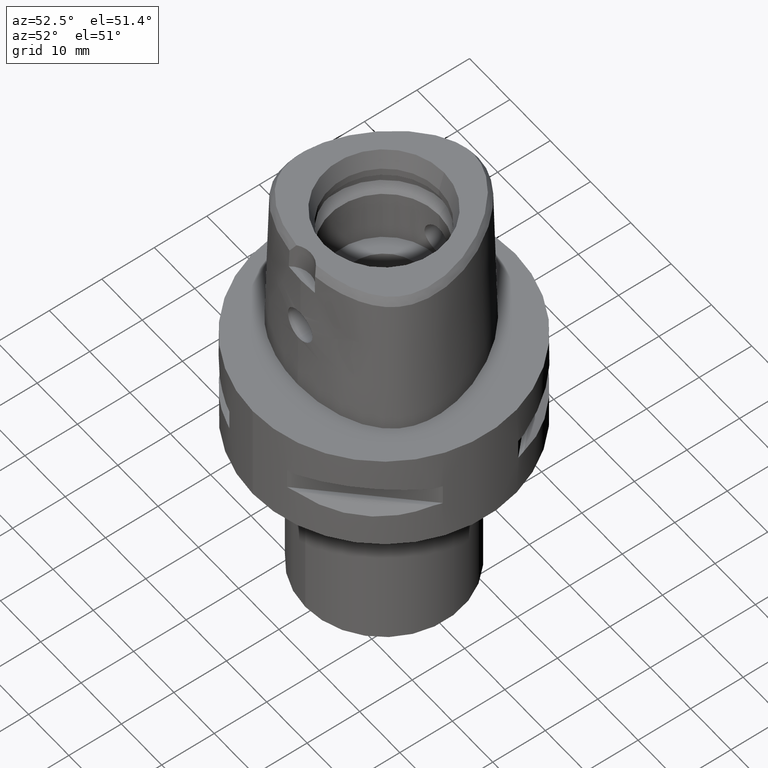
[diagram: clean part render]
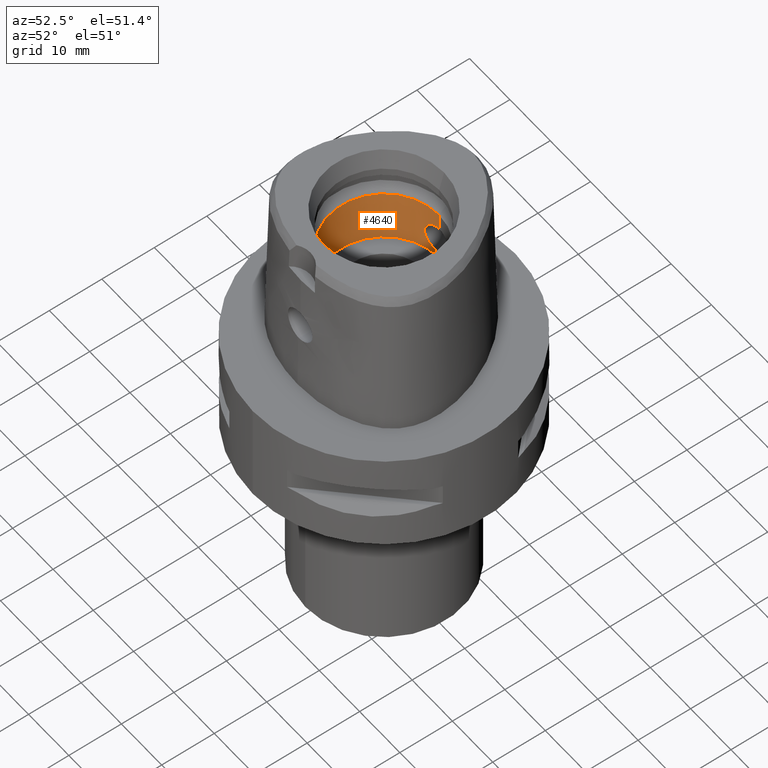
[diagram: same view with one face highlighted and labeled with its STEP entity id]
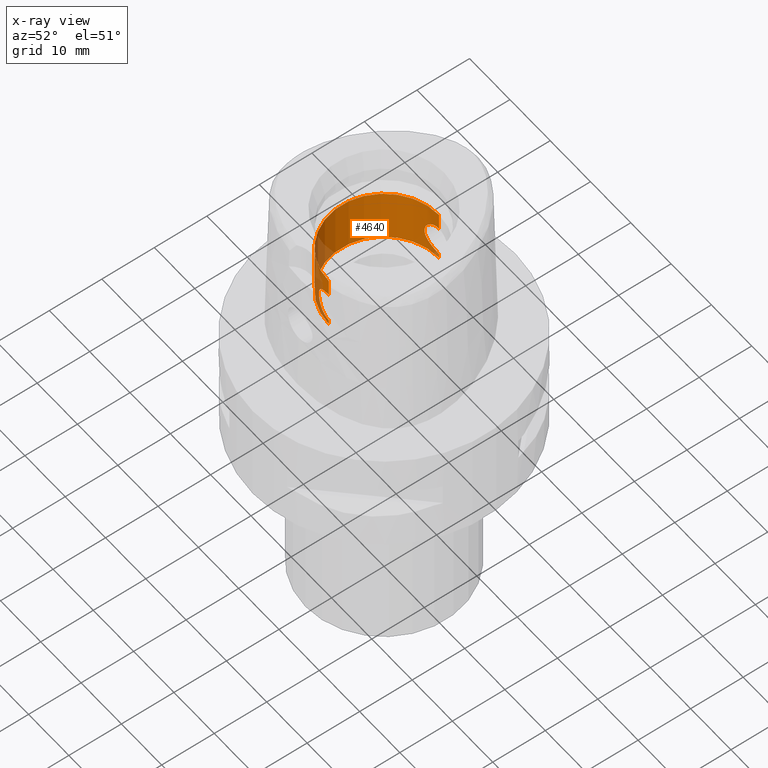
[diagram: x-ray of the same camera — body ghosted, the highlighted face saturated]
A machine part, auxiliary view. The second image highlights one B-rep face of the part: STEP entity #4640.
The next image is the same camera in x-ray: the body ghosted, the highlighted face saturated — about 11% of this face is hidden behind the body in this view.
In plain terms, the highlighted cylindrical surface (partial cylindrical patch) has radius 10.5 mm, axis along (0, 0, -1).
Its self-contained STEP definition (entity closure, byte-faithful):
#2 = CARTESIAN_POINT ( 'NONE',  ( -1.173481769181395240, 10.43414434571234928, 11.18478056985717828 ) ) ;
#6 = CARTESIAN_POINT ( 'NONE',  ( -0.9073737867379618738, 10.46066429760500327, 16.91233624105414535 ) ) ;
#8 = CARTESIAN_POINT ( 'NONE',  ( -1.171446280017236941, -10.43437439417400547, 16.81607116005074332 ) ) ;
#31 = CARTESIAN_POINT ( 'NONE',  ( -2.814434102808534455, 10.11581186352007578, 15.17535741035406360 ) ) ;
#56 = CARTESIAN_POINT ( 'NONE',  ( -1.135586481595579622, 10.43836894441158591, 16.83072159832767056 ) ) ;
#73 = ORIENTED_EDGE ( 'NONE', *, *, #1667, .F. ) ;
#106 = CARTESIAN_POINT ( 'NONE',  ( 0.0000000000000000000, 1.610410540878999754E-14, 31.50000000000000000 ) ) ;
#131 = CIRCLE ( 'NONE', #3624, 10.50000000000000000 ) ;
#159 = DIRECTION ( 'NONE',  ( 0.0000000000000000000, 0.0000000000000000000, -1.000000000000000000 ) ) ;
#166 = CARTESIAN_POINT ( 'NONE',  ( -2.892703254652473355, 10.09374968731904865, 13.03083356897538536 ) ) ;
#214 = CARTESIAN_POINT ( 'NONE',  ( 0.0000000000000000000, 1.610410540878999754E-14, 10.00000000000000000 ) ) ;
#219 = CARTESIAN_POINT ( 'NONE',  ( -0.3769461190990974209, -10.49475565115308129, 10.96703828538734093 ) ) ;
#243 = CARTESIAN_POINT ( 'NONE',  ( -3.034120694434184529, -10.05244458539319474, 14.36728261852221600 ) ) ;
#269 = CARTESIAN_POINT ( 'NONE',  ( -1.135542693560009253, -10.43837377961427393, 11.16926083653540402 ) ) ;
#285 = CARTESIAN_POINT ( 'NONE',  ( 0.0000000000000000000, 10.50000000000000000, 17.05000000000000071 ) ) ;
#302 = CARTESIAN_POINT ( 'NONE',  ( -2.831996980366694672, -10.11090781779727088, 15.13239191246858084 ) ) ;
#305 = CARTESIAN_POINT ( 'NONE',  ( -1.539446235935608698, 10.38596146682503196, 11.36500553783416301 ) ) ;
#319 = CARTESIAN_POINT ( 'NONE',  ( -1.063716534211054165, -10.44595862399150121, 11.14130147432112494 ) ) ;
#326 = DIRECTION ( 'NONE',  ( 0.0000000000000000000, 0.0000000000000000000, 1.000000000000000000 ) ) ;
#327 = CARTESIAN_POINT ( 'NONE',  ( -1.800689095717022736, -10.34490975957078618, 16.47030153377740547 ) ) ;
#383 = ORIENTED_EDGE ( 'NONE', *, *, #2547, .T. ) ;
#392 = CARTESIAN_POINT ( 'NONE',  ( -2.812821933415459164, 10.11626277296583254, 15.17921038497073027 ) ) ;
#461 = CARTESIAN_POINT ( 'NONE',  ( -2.684766696915229733, 10.15183026272683442, 15.44964215079497905 ) ) ;
#508 = CARTESIAN_POINT ( 'NONE',  ( -3.050553796235344617, 10.04720390952633480, 13.82341441610165411 ) ) ;
#550 = AXIS2_PLACEMENT_3D ( 'NONE', #106, #897, #2704 ) ;
#605 = CARTESIAN_POINT ( 'NONE',  ( -2.810298988625102190, -10.11696844544681362, 12.81477828219950510 ) ) ;
#609 = ORIENTED_EDGE ( 'NONE', *, *, #4462, .F. ) ;
#632 = CARTESIAN_POINT ( 'NONE',  ( -2.387696532047022036, 10.22542662744814734, 12.10138926639515589 ) ) ;
#659 = CARTESIAN_POINT ( 'NONE',  ( -2.684684765288590125, -10.15185177997768839, 12.55020687075531072 ) ) ;
#662 = CARTESIAN_POINT ( 'NONE',  ( -1.992064795466383265, 10.31113067677813966, 11.67458098449633930 ) ) ;
#670 = CARTESIAN_POINT ( 'NONE',  ( -1.539498320762261674, -10.38595313645027751, 16.63496444799061180 ) ) ;
#686 = CARTESIAN_POINT ( 'NONE',  ( -2.792488507834708145, -10.12196501333502141, 12.77319647353850662 ) ) ;
#693 = LINE ( 'NONE', #3652, #4292 ) ;
#735 = CARTESIAN_POINT ( 'NONE',  ( 0.0000000000000000000, -10.50000000000000000, 17.05000000000000071 ) ) ;
#775 = CARTESIAN_POINT ( 'NONE',  ( -1.143400080151486753, 10.43751671149130011, 16.82757071867980159 ) ) ;
#784 = VERTEX_POINT ( 'NONE', #4619 ) ;
#801 = CARTESIAN_POINT ( 'NONE',  ( -2.340017372230420722, 10.23775351421635449, 15.97455472758539941 ) ) ;
#828 = CARTESIAN_POINT ( 'NONE',  ( -1.918855400065954342, 10.32287837840188693, 16.37146043430447051 ) ) ;
#852 = CARTESIAN_POINT ( 'NONE',  ( -1.063757335181781283, 10.44595438389687203, 16.85868336233439280 ) ) ;
#897 = DIRECTION ( 'NONE',  ( 0.0000000000000000000, 0.0000000000000000000, -1.000000000000000000 ) ) ;
#905 = CARTESIAN_POINT ( 'NONE',  ( 0.0000000000000000000, -10.50000000000000000, 10.94999999999999929 ) ) ;
#939 = CARTESIAN_POINT ( 'NONE',  ( -2.387806793968355379, -10.22540079938099034, 15.89847208794759048 ) ) ;
#969 = CARTESIAN_POINT ( 'NONE',  ( -0.9796573461702405838, -10.45427583349091272, 11.11082713360943686 ) ) ;
#990 = CARTESIAN_POINT ( 'NONE',  ( -2.269379487402719775, -10.25194072429462011, 16.03799476641579957 ) ) ;
#998 = CARTESIAN_POINT ( 'NONE',  ( -2.640275799985668304, -10.16376989680981069, 12.46980625619239191 ) ) ;
#1021 = CARTESIAN_POINT ( 'NONE',  ( -2.057039722193770626, -10.29656268864571977, 11.74725631044854524 ) ) ;
#1024 = CARTESIAN_POINT ( 'NONE',  ( -2.290005176403708820, 10.24740007802946629, 11.98522421031074359 ) ) ;
#1060 = CARTESIAN_POINT ( 'NONE',  ( -2.226507933971030528, -10.26126560890290484, 16.08474659029496223 ) ) ;
#1091 = VERTEX_POINT ( 'NONE', #905 ) ;
#1123 = VERTEX_POINT ( 'NONE', #4589 ) ;
#1173 = CARTESIAN_POINT ( 'NONE',  ( -1.964843264978771487, 10.31435086354782626, 16.33359347603885325 ) ) ;
#1177 = EDGE_CURVE ( 'NONE', #1123, #3577, #4161, .T. ) ;
#1196 = CARTESIAN_POINT ( 'NONE',  ( -0.6659081719184466452, 10.47902095872267125, 16.97803263452759381 ) ) ;
#1218 = CARTESIAN_POINT ( 'NONE',  ( -2.101991880645496913, 10.28756668181484990, 16.21102535339625561 ) ) ;
#1240 = VERTEX_POINT ( 'NONE', #2724 ) ;
#1324 = CARTESIAN_POINT ( 'NONE',  ( -1.279795990413202356, -10.42254525341326854, 11.22781434327660222 ) ) ;
#1353 = CARTESIAN_POINT ( 'NONE',  ( -2.758065395820142651, -10.13161914555803378, 12.69732088948846460 ) ) ;
#1356 = CARTESIAN_POINT ( 'NONE',  ( 0.0000000000000000000, -10.50000000000000000, 20.40000000000000213 ) ) ;
#1368 = CARTESIAN_POINT ( 'NONE',  ( 0.0000000000000000000, 10.50000000000000000, 10.00000000000000000 ) ) ;
#1393 = CARTESIAN_POINT ( 'NONE',  ( -0.1858821787070612797, -10.49999999999999822, 10.95000000000000107 ) ) ;
#1406 = CARTESIAN_POINT ( 'NONE',  ( -1.782151806293168272, -10.34734398456256876, 11.52214724936526302 ) ) ;
#1459 = CARTESIAN_POINT ( 'NONE',  ( -2.831904509586855578, 10.11093372470853957, 12.86737685814506094 ) ) ;
#1512 = CARTESIAN_POINT ( 'NONE',  ( -0.1858882271651223494, 10.50000000000000000, 17.05000000000000071 ) ) ;
#1537 = CARTESIAN_POINT ( 'NONE',  ( -1.692952544297990025, 10.36212583802534404, 16.53900804376163336 ) ) ;
#1576 = CARTESIAN_POINT ( 'NONE',  ( -2.792575940378019261, 10.12194109926030450, 15.22660460357698220 ) ) ;
#1667 = EDGE_CURVE ( 'NONE', #2196, #1240, #2021, .T. ) ;
#1686 = CARTESIAN_POINT ( 'NONE',  ( -2.814344515331022922, -10.11583665672618082, 12.82442809338235357 ) ) ;
#1696 = CARTESIAN_POINT ( 'NONE',  ( 0.0000000000000000000, 10.50000000000000000, 17.05000000000000071 ) ) ;
#1712 = CARTESIAN_POINT ( 'NONE',  ( -3.050566719225782375, -10.04719961628191882, 14.17636273764910904 ) ) ;
#1741 = CARTESIAN_POINT ( 'NONE',  ( -1.918768346776058120, -10.32289481242496620, 11.62846930021224523 ) ) ;
#1769 = CARTESIAN_POINT ( 'NONE',  ( -2.835164359935582468, -10.11001752008970200, 15.12444837143124232 ) ) ;
#1772 = CARTESIAN_POINT ( 'NONE',  ( -1.456542451511891434, 10.39803232971827462, 11.31886405810929475 ) ) ;
#1780 = CARTESIAN_POINT ( 'NONE',  ( -1.194179935576460849, -10.43179318641776021, 16.80652400505248778 ) ) ;
#1827 = CARTESIAN_POINT ( 'NONE',  ( -1.303441592047922981, -10.41854934305479219, 16.75773104947085912 ) ) ;
#1861 = CARTESIAN_POINT ( 'NONE',  ( -1.105685293901660815, 10.44158033573992306, 16.84257792115571917 ) ) ;
#1934 = CARTESIAN_POINT ( 'NONE',  ( -2.758150321750191925, 10.13159626658370982, 15.30249952195736363 ) ) ;
#1935 = CYLINDRICAL_SURFACE ( 'NONE', #550, 10.50000000000000000 ) ;
#1958 = CARTESIAN_POINT ( 'NONE',  ( -2.896536638772347239, 10.09287351121230358, 14.97801049374260351 ) ) ;
#1981 = CARTESIAN_POINT ( 'NONE',  ( -3.034093898714390836, 10.05245301727958207, 13.63249388415417584 ) ) ;
#2014 = DIRECTION ( 'NONE',  ( 0.0000000000000000000, -1.000000000000000000, 0.0000000000000000000 ) ) ;
#2021 = B_SPLINE_CURVE_WITH_KNOTS ( 'NONE', 3,
 ( #3375, #1512, #3325, #1196, #4164, #6, #2992, #852, #1861, #4134, #56, #775, #2273, #4442, #1537, #2661, #828, #1173, #2302, #1218, #801, #4092, #3792, #461, #3415, #1934, #2586, #1576, #3349, #2686, #392, #31, #4472, #1958, #3514, #2341, #3443, #508, #1981, #3467, #2726, #3488, #166, #3965, #2894, #2865, #3303, #1459, #4025, #4395, #2152, #2101, #632, #4345, #1024, #2479, #4742, #3994, #662, #4370, #305, #1772, #3256, #3012, #2296, #3719, #2629, #3697, #2, #4129, #2269, #4158, #3341 ),
 .UNSPECIFIED., .F., .F.,
 ( 4, 2, 2, 1, 1, 1, 2, 2, 2, 2, 2, 2, 2, 2, 2, 1, 1, 1, 2, 2, 2, 2, 2, 2, 1, 1, 1, 2, 2, 2, 2, 2, 2, 2, 2, 2, 2, 1, 1, 2, 2, 4 ),
 ( 0.0000000000000000000, 0.06249999999999839018, 0.09374999999999747424, 0.1093749999999968220, 0.1171874999999963363, 0.1210937499999958922, 0.1230468749999954620, 0.1249999999999950179, 0.1874999999999928668, 0.2187499999999920897, 0.2343749999999916733, 0.2499999999999912292, 0.3124999999999893974, 0.3437499999999886757, 0.3593749999999882871, 0.3671874999999878431, 0.3710937499999876210, 0.3730468749999875100, 0.3740234374999873435, 0.3749999999999872324, 0.4374999999999830136, 0.4999999999999787947, 0.5624999999999746869, 0.5937499999999724665, 0.6093749999999712452, 0.6171874999999705791, 0.6210937499999702460, 0.6230468749999700240, 0.6249999999999699130, 0.6874999999999749090, 0.7187499999999774625, 0.7343749999999786837, 0.7421874999999791278, 0.7499999999999795719, 0.8124999999999830136, 0.8437499999999846789, 0.8593749999999856781, 0.8671874999999861222, 0.8710937499999863443, 0.8730468749999864553, 0.8749999999999866773, 1.000000000000000000 ),
 .UNSPECIFIED. ) ;
#2046 = CARTESIAN_POINT ( 'NONE',  ( -2.839865650372092709, -10.10869485165321180, 15.11252153943194720 ) ) ;
#2070 = CARTESIAN_POINT ( 'NONE',  ( -2.896466489099945196, -10.09289404095490816, 13.02177910099563896 ) ) ;
#2074 = DIRECTION ( 'NONE',  ( 0.0000000000000000000, 0.0000000000000000000, 1.000000000000000000 ) ) ;
#2075 = VERTEX_POINT ( 'NONE', #1368 ) ;
#2098 = CARTESIAN_POINT ( 'NONE',  ( -0.6658837331732454512, -10.47902260461231805, 11.02196203203387803 ) ) ;
#2101 = CARTESIAN_POINT ( 'NONE',  ( -2.492666721025248666, 10.20089502616666444, 12.23864188606382442 ) ) ;
#2108 = CARTESIAN_POINT ( 'NONE',  ( -1.992165530446870614, -10.31111156906067627, 16.32533859875128712 ) ) ;
#2113 = EDGE_CURVE ( 'NONE', #1091, #784, #3538, .T. ) ;
#2115 = DIRECTION ( 'NONE',  ( 0.0000000000000000000, 0.0000000000000000000, 1.000000000000000000 ) ) ;
#2125 = CARTESIAN_POINT ( 'NONE',  ( -3.049403424720013689, -10.04754727865349651, 13.80455211184334274 ) ) ;
#2149 = CARTESIAN_POINT ( 'NONE',  ( -2.954890636952320460, -10.07597771771355966, 13.21854996271913230 ) ) ;
#2152 = CARTESIAN_POINT ( 'NONE',  ( -2.552730107843664609, 10.18607107482576346, 12.32787693487547109 ) ) ;
#2182 = CARTESIAN_POINT ( 'NONE',  ( -2.205204961979309264, -10.26584817307253061, 16.10730119147505235 ) ) ;
#2196 = VERTEX_POINT ( 'NONE', #1696 ) ;
#2269 = CARTESIAN_POINT ( 'NONE',  ( -0.7767670544993955373, 10.47835210009466778, 11.02075174476987485 ) ) ;
#2273 = CARTESIAN_POINT ( 'NONE',  ( -1.279836940357531372, 10.42254014582241517, 16.77216661298817968 ) ) ;
#2296 = CARTESIAN_POINT ( 'NONE',  ( -1.249850778321642597, 10.42519533784937380, 11.21777819611717142 ) ) ;
#2302 = CARTESIAN_POINT ( 'NONE',  ( -2.057140347131940938, 10.29654247502929820, 16.25265202806501108 ) ) ;
#2341 = CARTESIAN_POINT ( 'NONE',  ( -3.031369317546774855, 10.05329747986363920, 14.39095039537178522 ) ) ;
#2350 = CARTESIAN_POINT ( 'NONE',  ( 0.0000000000000000000, 1.483659597167000164E-14, 20.40000000000000213 ) ) ;
#2366 = EDGE_LOOP ( 'NONE', ( #3117, #383, #4142, #73, #3559, #4767, #609, #4079 ) ) ;
#2404 = CARTESIAN_POINT ( 'NONE',  ( -0.9073394764245766853, -10.46066738364810078, 11.08765310790325387 ) ) ;
#2406 = LINE ( 'NONE', #3907, #3423 ) ;
#2420 = AXIS2_PLACEMENT_3D ( 'NONE', #2350, #3475, #3868 ) ;
#2479 = CARTESIAN_POINT ( 'NONE',  ( -2.269261269603271014, 10.25196694371598660, 11.96187359724530630 ) ) ;
#2493 = CARTESIAN_POINT ( 'NONE',  ( 0.0000000000000000000, -10.50000000000000000, 10.94999999999999929 ) ) ;
#2506 = CARTESIAN_POINT ( 'NONE',  ( -2.915613240435241948, -10.08718875156315775, 14.89677927706764748 ) ) ;
#2517 = CARTESIAN_POINT ( 'NONE',  ( -1.223696554588773688, -10.42835944331005926, 16.79386248893820976 ) ) ;
#2534 = CARTESIAN_POINT ( 'NONE',  ( 0.0000000000000000000, -10.50000000000000000, 10.00000000000000000 ) ) ;
#2547 = EDGE_CURVE ( 'NONE', #3689, #2075, #131, .T. ) ;
#2560 = CARTESIAN_POINT ( 'NONE',  ( -1.173527990662550424, -10.43413901341829053, 16.81520016262577855 ) ) ;
#2586 = CARTESIAN_POINT ( 'NONE',  ( -2.781477646154199235, 10.12505940399087656, 15.25149177163174485 ) ) ;
#2629 = CARTESIAN_POINT ( 'NONE',  ( -1.194134817315212871, 10.43179848576169455, 11.19345679531692284 ) ) ;
#2661 = CARTESIAN_POINT ( 'NONE',  ( -1.782225915804712901, 10.34733088474845175, 16.47780010016332142 ) ) ;
#2686 = CARTESIAN_POINT ( 'NONE',  ( -2.810388143672286176, 10.11694382858964403, 15.18501030600808832 ) ) ;
#2704 = DIRECTION ( 'NONE',  ( 0.0000000000000000000, -1.000000000000000000, 0.0000000000000000000 ) ) ;
#2724 = CARTESIAN_POINT ( 'NONE',  ( 0.0000000000000000000, 10.50000000000000000, 10.94999999999999929 ) ) ;
#2726 = CARTESIAN_POINT ( 'NONE',  ( -2.957404987291375242, 10.07514382461166313, 13.24746365644147872 ) ) ;
#2751 = CARTESIAN_POINT ( 'NONE',  ( 0.0000000000000000000, -10.50000000000000000, 10.00000000000000000 ) ) ;
#2772 = CARTESIAN_POINT ( 'NONE',  ( -2.492770665414242526, -10.20086949494308826, 15.76121112470948660 ) ) ;
#2790 = VECTOR ( 'NONE', #2074, 1000.000000000000000 ) ;
#2803 = CARTESIAN_POINT ( 'NONE',  ( -2.862735943340226186, -10.10224555518287026, 15.05279826208894178 ) ) ;
#2836 = CARTESIAN_POINT ( 'NONE',  ( -2.980268530302241370, -10.06844023950569245, 14.65579776978555415 ) ) ;
#2862 = CARTESIAN_POINT ( 'NONE',  ( -2.741008001927989213, -10.13637700422589738, 12.66167708119035140 ) ) ;
#2865 = CARTESIAN_POINT ( 'NONE',  ( -2.839775513783905136, 10.10872017870532247, 12.88724840029589380 ) ) ;
#2867 = LINE ( 'NONE', #2751, #2790 ) ;
#2890 = CARTESIAN_POINT ( 'NONE',  ( -2.708352292740518141, -10.14616532564585683, 15.41669992838478542 ) ) ;
#2894 = CARTESIAN_POINT ( 'NONE',  ( -2.846767551134091523, 10.10675162818707840, 12.90514776315966650 ) ) ;
#2949 = CARTESIAN_POINT ( 'NONE',  ( -1.181758103918400415, -10.43320822473438980, 16.81175526750459426 ) ) ;
#2992 = CARTESIAN_POINT ( 'NONE',  ( -0.9796946515694509028, 10.45427224596581617, 16.88916028953806503 ) ) ;
#3012 = CARTESIAN_POINT ( 'NONE',  ( -1.303398871617692523, 10.41855493660956711, 11.24224875709307980 ) ) ;
#3016 = EDGE_CURVE ( 'NONE', #2196, #1123, #4697, .T. ) ;
#3082 = FACE_OUTER_BOUND ( 'NONE', #2366, .T. ) ;
#3117 = ORIENTED_EDGE ( 'NONE', *, *, #4739, .F. ) ;
#3173 = CARTESIAN_POINT ( 'NONE',  ( -1.964751717378592444, -10.31436849805076861, 11.66632966369394886 ) ) ;
#3199 = CARTESIAN_POINT ( 'NONE',  ( -1.692886324336074777, -10.36213707134099060, 11.46094815665473732 ) ) ;
#3225 = CARTESIAN_POINT ( 'NONE',  ( -2.101877552110719360, -10.28759016583240360, 11.78886586514040680 ) ) ;
#3252 = CARTESIAN_POINT ( 'NONE',  ( -2.781391092934895948, -10.12508295743033493, 12.74831593990802148 ) ) ;
#3256 = CARTESIAN_POINT ( 'NONE',  ( -1.340635214852846202, 10.41372587812801775, 11.26009604480648463 ) ) ;
#3303 = CARTESIAN_POINT ( 'NONE',  ( -2.835073057682020448, 10.11004312956455919, 12.87532144639626353 ) ) ;
#3325 = CARTESIAN_POINT ( 'NONE',  ( -0.3769591975224468872, 10.49475523968066781, 17.03296060415556212 ) ) ;
#3341 = CARTESIAN_POINT ( 'NONE',  ( 0.0000000000000000000, 10.50000000000000000, 10.94999999999999929 ) ) ;
#3349 = CARTESIAN_POINT ( 'NONE',  ( -2.804599594535904128, 10.11856579856483584, 15.19868616575141473 ) ) ;
#3375 = CARTESIAN_POINT ( 'NONE',  ( 0.0000000000000000000, 10.50000000000000000, 17.05000000000000071 ) ) ;
#3415 = CARTESIAN_POINT ( 'NONE',  ( -2.741092017078219367, 10.13635451248782360, 15.33815103761373599 ) ) ;
#3423 = VECTOR ( 'NONE', #4324, 1000.000000000000000 ) ;
#3443 = CARTESIAN_POINT ( 'NONE',  ( -3.049417728769433733, 10.04754355342037186, 14.19522409593405499 ) ) ;
#3467 = CARTESIAN_POINT ( 'NONE',  ( -2.980218954398628828, 10.06845507345984281, 13.34397666452088949 ) ) ;
#3475 = DIRECTION ( 'NONE',  ( 0.0000000000000000000, 0.0000000000000000000, 1.000000000000000000 ) ) ;
#3488 = CARTESIAN_POINT ( 'NONE',  ( -2.915543178945628533, 10.08720904997699463, 13.10299287989910333 ) ) ;
#3514 = CARTESIAN_POINT ( 'NONE',  ( -2.954945378488422758, 10.07596145121569009, 14.78124257510409123 ) ) ;
#3538 = B_SPLINE_CURVE_WITH_KNOTS ( 'NONE', 3,
 ( #2493, #1393, #219, #2098, #3963, #2404, #969, #319, #3593, #3936, #269, #3539, #1324, #4021, #3199, #1406, #1741, #3173, #1021, #3225, #4712, #4271, #998, #659, #2862, #1353, #3252, #686, #4342, #605, #4630, #1686, #3991, #2070, #2149, #3563, #2125, #1712, #243, #2836, #4656, #2506, #3623, #2803, #3644, #2046, #1769, #302, #4738, #2890, #4367, #2772, #939, #3906, #4299, #990, #1060, #2182, #2108, #327, #670, #4722, #4050, #1827, #4799, #2517, #1780, #2949, #2560, #8, #4030, #4071, #735 ),
 .UNSPECIFIED., .F., .F.,
 ( 4, 2, 2, 1, 1, 1, 2, 2, 2, 2, 2, 2, 2, 2, 2, 1, 1, 1, 2, 2, 2, 2, 2, 2, 1, 1, 1, 2, 2, 2, 2, 2, 2, 2, 2, 2, 2, 1, 1, 2, 2, 4 ),
 ( 0.0000000000000000000, 0.06250000000001000589, 0.09375000000001507128, 0.1093750000000175970, 0.1171875000000187905, 0.1210937500000194428, 0.1230468750000197620, 0.1250000000000200950, 0.1875000000000295597, 0.2187500000000343892, 0.2343750000000366096, 0.2500000000000388023, 0.3125000000000481282, 0.3437500000000525135, 0.3593750000000546785, 0.3671875000000554556, 0.3710937500000558442, 0.3730468750000560663, 0.3740234375000561773, 0.3750000000000562328, 0.4375000000000615064, 0.5000000000000667244, 0.5625000000000719425, 0.5937500000000748290, 0.6093750000000760503, 0.6171875000000766054, 0.6210937500000769385, 0.6230468750000767164, 0.6250000000000766054, 0.6875000000000682787, 0.7187500000000642819, 0.7343750000000619504, 0.7421875000000603961, 0.7500000000000588418, 0.8125000000000454081, 0.8437500000000383027, 0.8593750000000347500, 0.8671875000000329736, 0.8710937500000320854, 0.8730468750000316414, 0.8750000000000311973, 1.000000000000000000 ),
 .UNSPECIFIED. ) ;
#3539 = CARTESIAN_POINT ( 'NONE',  ( -1.143355691381911621, -10.43752164385020009, 11.17241133186582402 ) ) ;
#3559 = ORIENTED_EDGE ( 'NONE', *, *, #3016, .T. ) ;
#3563 = CARTESIAN_POINT ( 'NONE',  ( -3.031342417539752976, -10.05330536343644532, 13.60884020562052399 ) ) ;
#3577 = VERTEX_POINT ( 'NONE', #1356 ) ;
#3593 = CARTESIAN_POINT ( 'NONE',  ( -1.105642749025332883, -10.44158491899611896, 11.15740553524793732 ) ) ;
#3604 = EDGE_CURVE ( 'NONE', #2075, #1240, #2406, .T. ) ;
#3623 = CARTESIAN_POINT ( 'NONE',  ( -2.892779767766547661, -10.09372772773053129, 14.96893785280860811 ) ) ;
#3624 = AXIS2_PLACEMENT_3D ( 'NONE', #214, #159, #2014 ) ;
#3644 = CARTESIAN_POINT ( 'NONE',  ( -2.846855945761352480, -10.10672672438996322, 15.09462235994706170 ) ) ;
#3652 = CARTESIAN_POINT ( 'NONE',  ( 0.0000000000000000000, -10.50000000000000000, 17.05000000000000071 ) ) ;
#3689 = VERTEX_POINT ( 'NONE', #2534 ) ;
#3697 = CARTESIAN_POINT ( 'NONE',  ( -1.181712339514857657, 10.43321354156312353, 11.18822549817858025 ) ) ;
#3719 = CARTESIAN_POINT ( 'NONE',  ( -1.223652669071662480, 10.42836474184865025, 11.20611828330445015 ) ) ;
#3792 = CARTESIAN_POINT ( 'NONE',  ( -2.640357193562567595, 10.16374877958839917, 15.53005372624609848 ) ) ;
#3868 = DIRECTION ( 'NONE',  ( 0.0000000000000000000, 1.000000000000000000, 0.0000000000000000000 ) ) ;
#3906 = CARTESIAN_POINT ( 'NONE',  ( -2.350340408129777625, -10.23396049523662299, 15.94478294968287102 ) ) ;
#3907 = CARTESIAN_POINT ( 'NONE',  ( 0.0000000000000000000, 10.50000000000000000, 10.00000000000000000 ) ) ;
#3936 = CARTESIAN_POINT ( 'NONE',  ( -1.123586221658788409, -10.43966438108831696, 11.16449379775527539 ) ) ;
#3963 = CARTESIAN_POINT ( 'NONE',  ( -0.7625703721083232356, -10.47246716855366877, 11.04515587397258614 ) ) ;
#3965 = CARTESIAN_POINT ( 'NONE',  ( -2.862651568063822705, 10.10226947403874576, 12.94697229186689391 ) ) ;
#3991 = CARTESIAN_POINT ( 'NONE',  ( -2.814682808561236094, -10.11574201763254877, 12.82523559241649203 ) ) ;
#3994 = CARTESIAN_POINT ( 'NONE',  ( -2.205077291528096950, 10.26587564079246384, 11.89256531609304091 ) ) ;
#4021 = CARTESIAN_POINT ( 'NONE',  ( -1.436037366714201680, -10.40199724773631118, 11.30168753427687456 ) ) ;
#4025 = CARTESIAN_POINT ( 'NONE',  ( -2.779249975077062285, 10.12572536374201881, 12.73625855137762386 ) ) ;
#4030 = CARTESIAN_POINT ( 'NONE',  ( -0.7767962137260253641, -10.47835031560379271, 16.97924374079444476 ) ) ;
#4050 = CARTESIAN_POINT ( 'NONE',  ( -1.340678361139501451, -10.41372001125939484, 16.73988286986111618 ) ) ;
#4071 = CARTESIAN_POINT ( 'NONE',  ( -0.3766998066106143073, -10.49999999999999467, 17.04999999999999716 ) ) ;
#4079 = ORIENTED_EDGE ( 'NONE', *, *, #2113, .F. ) ;
#4092 = CARTESIAN_POINT ( 'NONE',  ( -2.481094531452812557, 10.20430838027981402, 15.78518121914376415 ) ) ;
#4129 = CARTESIAN_POINT ( 'NONE',  ( -1.171399287562102431, 10.43437980341195903, 11.18390929300170278 ) ) ;
#4134 = CARTESIAN_POINT ( 'NONE',  ( -1.123629512633663285, 10.43965964714642070, 16.83548904825253345 ) ) ;
#4142 = ORIENTED_EDGE ( 'NONE', *, *, #3604, .T. ) ;
#4158 = CARTESIAN_POINT ( 'NONE',  ( -0.3766879860906776067, 10.50000000000000178, 10.94999999999999929 ) ) ;
#4161 = CIRCLE ( 'NONE', #2420, 10.50000000000000000 ) ;
#4164 = CARTESIAN_POINT ( 'NONE',  ( -0.7625987292267103479, 10.47246500832350158, 16.95483695953736358 ) ) ;
#4271 = CARTESIAN_POINT ( 'NONE',  ( -2.481010618015591085, -10.20432904629896420, 12.21470364151900156 ) ) ;
#4292 = VECTOR ( 'NONE', #326, 1000.000000000000000 ) ;
#4299 = CARTESIAN_POINT ( 'NONE',  ( -2.290121940528549782, -10.24737393058455659, 16.01464306674308347 ) ) ;
#4324 = DIRECTION ( 'NONE',  ( 0.0000000000000000000, 0.0000000000000000000, 1.000000000000000000 ) ) ;
#4342 = CARTESIAN_POINT ( 'NONE',  ( -2.804511030664750049, -10.11859017433539343, 12.80110666931251195 ) ) ;
#4345 = CARTESIAN_POINT ( 'NONE',  ( -2.350227749621716988, 10.23398644025366266, 12.05508090461246873 ) ) ;
#4367 = CARTESIAN_POINT ( 'NONE',  ( -2.552830998716140165, -10.18604566948979695, 15.67196937745987029 ) ) ;
#4370 = CARTESIAN_POINT ( 'NONE',  ( -1.800613792199286856, 10.34492338628508890, 11.52964535192504592 ) ) ;
#4395 = CARTESIAN_POINT ( 'NONE',  ( -2.708258189014953299, 10.14619056934331454, 12.58312182059100692 ) ) ;
#4442 = CARTESIAN_POINT ( 'NONE',  ( -1.436084574734638908, 10.40199054499355391, 16.69828867031207764 ) ) ;
#4462 = EDGE_CURVE ( 'NONE', #784, #3577, #693, .T. ) ;
#4472 = CARTESIAN_POINT ( 'NONE',  ( -2.814772877959416331, 10.11571708512820855, 15.17454858152561492 ) ) ;
#4589 = CARTESIAN_POINT ( 'NONE',  ( 0.0000000000000000000, 10.50000000000000000, 20.40000000000000213 ) ) ;
#4619 = CARTESIAN_POINT ( 'NONE',  ( 0.0000000000000000000, -10.50000000000000000, 17.05000000000000071 ) ) ;
#4630 = CARTESIAN_POINT ( 'NONE',  ( -2.812732519622997085, -10.11628749533982585, 12.82057635615622893 ) ) ;
#4640 = ADVANCED_FACE ( 'NONE', ( #3082 ), #1935, .F. ) ;
#4656 = CARTESIAN_POINT ( 'NONE',  ( -2.957462485289236831, -10.07512682428411921, 14.75230991381474688 ) ) ;
#4697 = LINE ( 'NONE', #285, #4788 ) ;
#4712 = CARTESIAN_POINT ( 'NONE',  ( -2.339926308496349527, -10.23777487794879271, 12.02533563020479335 ) ) ;
#4722 = CARTESIAN_POINT ( 'NONE',  ( -1.456589136767923343, -10.39802527726249615, 16.68111068794145169 ) ) ;
#4738 = CARTESIAN_POINT ( 'NONE',  ( -2.779342568008801528, -10.12569993977115068, 15.26354077318109503 ) ) ;
#4739 = EDGE_CURVE ( 'NONE', #3689, #1091, #2867, .T. ) ;
#4742 = CARTESIAN_POINT ( 'NONE',  ( -2.226386626220859366, 10.26129198127821063, 11.91512385645762606 ) ) ;
#4767 = ORIENTED_EDGE ( 'NONE', *, *, #1177, .T. ) ;
#4788 = VECTOR ( 'NONE', #2115, 1000.000000000000000 ) ;
#4799 = CARTESIAN_POINT ( 'NONE',  ( -1.249894073512579196, -10.42518997144253667, 16.78220235358109491 ) ) ;